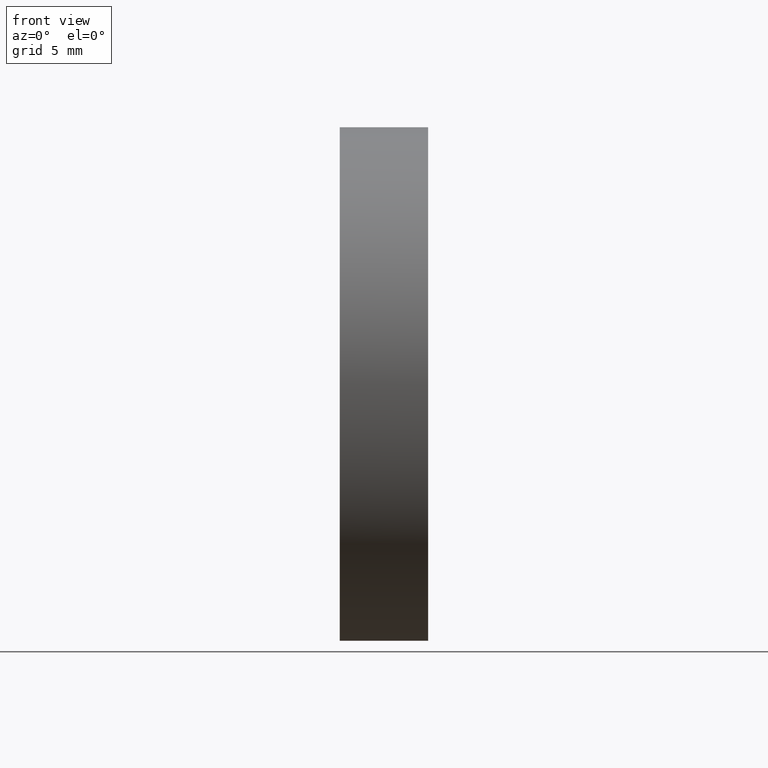
[diagram: clean part render]
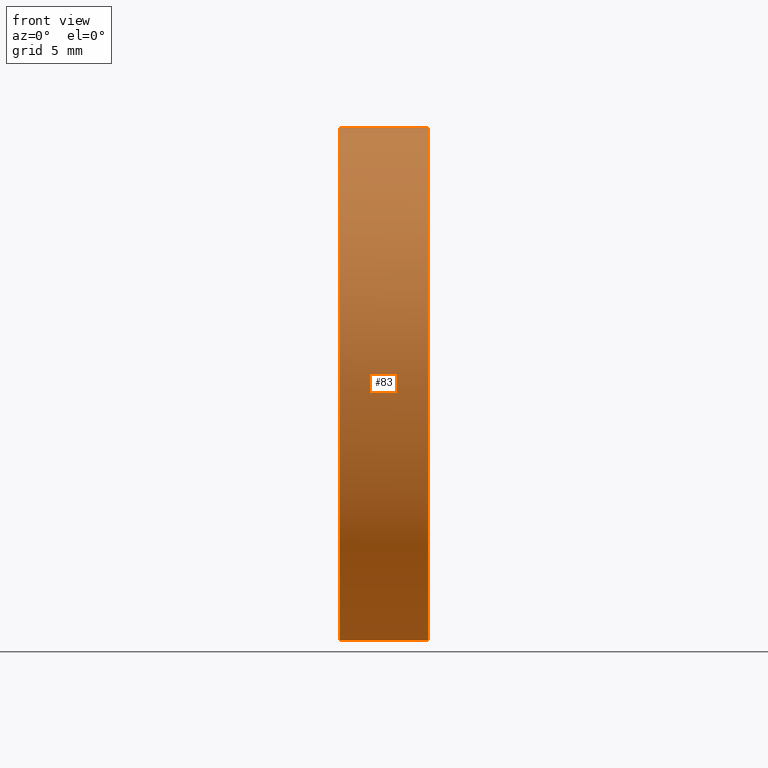
[diagram: same view with one face highlighted and labeled with its STEP entity id]
A machine part, front view. The second image highlights one B-rep face of the part: STEP entity #83.
In plain terms, the highlighted cylindrical surface (partial cylindrical patch) has radius 12.7 mm, axis along (-1, -0, -0).
Its self-contained STEP definition (entity closure, byte-faithful):
#13 = AXIS2_PLACEMENT_3D ( 'NONE', #105, #148, #128 ) ;
#19 = DIRECTION ( 'NONE',  ( -1.000000000000000000, -0.0000000000000000000, -0.0000000000000000000 ) ) ;
#20 = DIRECTION ( 'NONE',  ( -1.000000000000000000, -0.0000000000000000000, -0.0000000000000000000 ) ) ;
#29 = ORIENTED_EDGE ( 'NONE', *, *, #151, .F. ) ;
#31 = EDGE_CURVE ( 'NONE', #171, #185, #32, .T. ) ;
#32 = LINE ( 'NONE', #56, #181 ) ;
#34 = AXIS2_PLACEMENT_3D ( 'NONE', #68, #19, #132 ) ;
#45 = FACE_OUTER_BOUND ( 'NONE', #170, .T. ) ;
#47 = CIRCLE ( 'NONE', #34, 12.70000000000001700 ) ;
#48 = AXIS2_PLACEMENT_3D ( 'NONE', #175, #121, #161 ) ;
#51 = ORIENTED_EDGE ( 'NONE', *, *, #166, .T. ) ;
#56 = CARTESIAN_POINT ( 'NONE',  ( 111.9552297575605700, 71.19398908659370300, -12.70000000000001000 ) ) ;
#57 = CIRCLE ( 'NONE', #48, 12.70000000000000300 ) ;
#59 = CIRCLE ( 'NONE', #13, 12.70000000000001700 ) ;
#64 = VERTEX_POINT ( 'NONE', #112 ) ;
#65 = DIRECTION ( 'NONE',  ( -1.000000000000000000, -0.0000000000000000000, -0.0000000000000000000 ) ) ;
#68 = CARTESIAN_POINT ( 'NONE',  ( 123.8789606841635900, 71.19398908659370300, 0.0000000000000000000 ) ) ;
#70 = CARTESIAN_POINT ( 'NONE',  ( 111.9552297575605700, 71.19398908659370300, 12.70000000000001000 ) ) ;
#71 = VERTEX_POINT ( 'NONE', #149 ) ;
#74 = ORIENTED_EDGE ( 'NONE', *, *, #114, .T. ) ;
#77 = CYLINDRICAL_SURFACE ( 'NONE', #165, 12.70000000000001000 ) ;
#82 = DIRECTION ( 'NONE',  ( 0.0000000000000000000, 0.0000000000000000000, 1.000000000000000000 ) ) ;
#83 = ADVANCED_FACE ( 'NONE', ( #45 ), #77, .T. ) ;
#85 = EDGE_CURVE ( 'NONE', #138, #71, #117, .T. ) ;
#91 = CARTESIAN_POINT ( 'NONE',  ( 123.8789606841635900, 71.19398908659370300, 12.70000000000001500 ) ) ;
#99 = ORIENTED_EDGE ( 'NONE', *, *, #31, .F. ) ;
#102 = ORIENTED_EDGE ( 'NONE', *, *, #85, .T. ) ;
#105 = CARTESIAN_POINT ( 'NONE',  ( 123.8789606841635900, 71.19398908659370300, 0.0000000000000000000 ) ) ;
#112 = CARTESIAN_POINT ( 'NONE',  ( 123.8789606841636000, 58.49398908659367200, 0.0000000000000000000 ) ) ;
#114 = EDGE_CURVE ( 'NONE', #64, #138, #47, .T. ) ;
#117 = LINE ( 'NONE', #70, #172 ) ;
#121 = DIRECTION ( 'NONE',  ( -1.000000000000000000, -0.0000000000000000000, -0.0000000000000000000 ) ) ;
#128 = DIRECTION ( 'NONE',  ( 0.0000000000000000000, 0.0000000000000000000, 1.000000000000000000 ) ) ;
#132 = DIRECTION ( 'NONE',  ( 0.0000000000000000000, 0.0000000000000000000, 1.000000000000000000 ) ) ;
#138 = VERTEX_POINT ( 'NONE', #91 ) ;
#141 = CARTESIAN_POINT ( 'NONE',  ( 119.5068341785477100, 71.19398908659370300, -12.70000000000000300 ) ) ;
#144 = CARTESIAN_POINT ( 'NONE',  ( 111.9552297575605700, 71.19398908659370300, 0.0000000000000000000 ) ) ;
#148 = DIRECTION ( 'NONE',  ( -1.000000000000000000, -0.0000000000000000000, -0.0000000000000000000 ) ) ;
#149 = CARTESIAN_POINT ( 'NONE',  ( 119.5068341785477100, 71.19398908659370300, 12.70000000000000300 ) ) ;
#151 = EDGE_CURVE ( 'NONE', #185, #71, #57, .T. ) ;
#157 = CARTESIAN_POINT ( 'NONE',  ( 123.8789606841635900, 71.19398908659370300, -12.70000000000001500 ) ) ;
#161 = DIRECTION ( 'NONE',  ( 0.0000000000000000000, 0.0000000000000000000, 1.000000000000000000 ) ) ;
#165 = AXIS2_PLACEMENT_3D ( 'NONE', #144, #20, #82 ) ;
#166 = EDGE_CURVE ( 'NONE', #171, #64, #59, .T. ) ;
#170 = EDGE_LOOP ( 'NONE', ( #99, #51, #74, #102, #29 ) ) ;
#171 = VERTEX_POINT ( 'NONE', #157 ) ;
#172 = VECTOR ( 'NONE', #65, 1000.000000000000000 ) ;
#175 = CARTESIAN_POINT ( 'NONE',  ( 119.5068341785477100, 71.19398908659370300, 0.0000000000000000000 ) ) ;
#180 = DIRECTION ( 'NONE',  ( -1.000000000000000000, -0.0000000000000000000, -0.0000000000000000000 ) ) ;
#181 = VECTOR ( 'NONE', #180, 1000.000000000000000 ) ;
#185 = VERTEX_POINT ( 'NONE', #141 ) ;